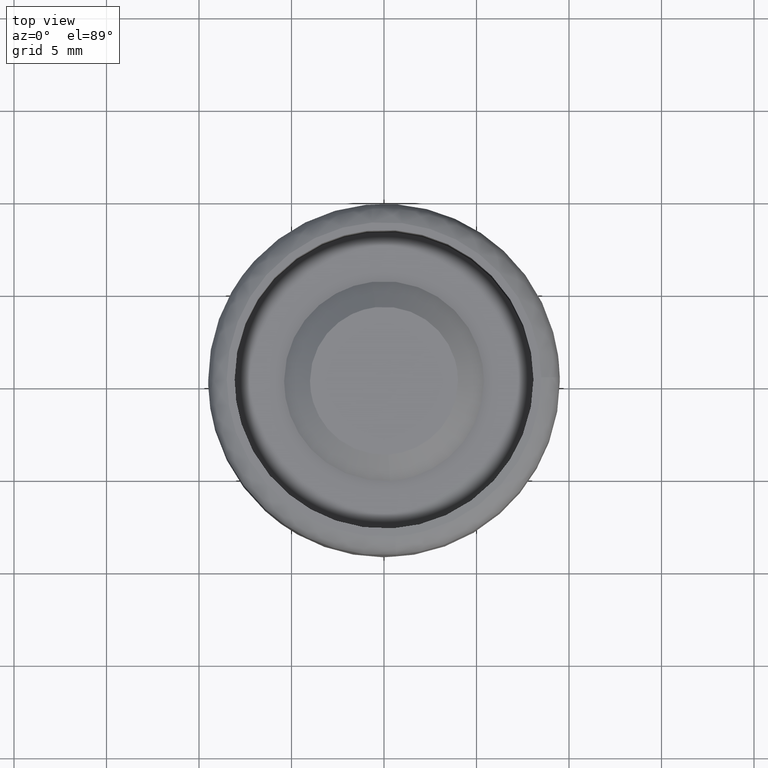
[diagram: clean part render]
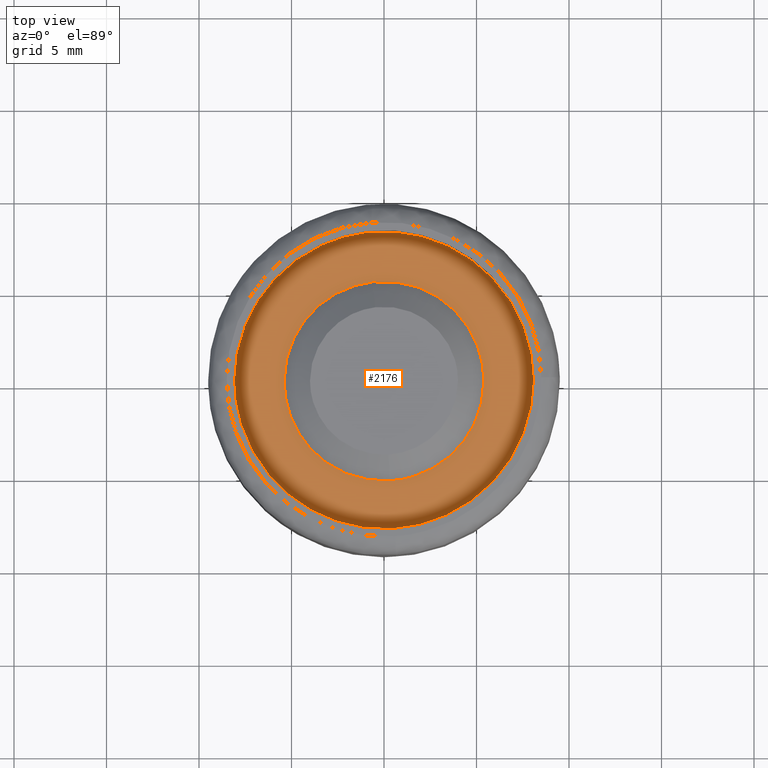
[diagram: same view with one face highlighted and labeled with its STEP entity id]
A machine part, top view. The second image highlights one B-rep face of the part: STEP entity #2176.
In plain terms, the highlighted face is a freeform B-spline surface patch.
Its self-contained STEP definition (entity closure, byte-faithful):
#899=CARTESIAN_POINT('',(0.329662113553684,-5.389927911483381,8.499999999993367));
#900=VERTEX_POINT('',#899);
#906=CARTESIAN_POINT('',(5.400000000000000,0.0,8.500000000000000));
#907=VERTEX_POINT('',#906);
#908=CARTESIAN_POINT('',(5.400000000000000,0.0,8.500000000000000));
#909=CARTESIAN_POINT('',(5.400000000000000,-5.079812761168246,8.500000000000000));
#910=CARTESIAN_POINT('',(0.329662113553684,-5.389927911483381,8.499999999993367));
#918=(BOUNDED_CURVE()B_SPLINE_CURVE(2,(#908,#909,#910),.UNSPECIFIED.,.F.,.U.)B_SPLINE_CURVE_WITH_KNOTS((3,3),(0.500000000000000,0.739332962237815),.UNSPECIFIED.)CURVE()GEOMETRIC_REPRESENTATION_ITEM()RATIONAL_B_SPLINE_CURVE((1.0,0.719603993288032,0.976072041664300))REPRESENTATION_ITEM(''));
#919=EDGE_CURVE('',#907,#900,#918,.T.);
#921=CARTESIAN_POINT('',(-0.637384867185027,5.362251442364437,8.499999999996298));
#922=VERTEX_POINT('',#921);
#923=CARTESIAN_POINT('',(-0.637384867185027,5.362251442364437,8.499999999996298));
#924=CARTESIAN_POINT('',(-0.319810246158635,5.400000000000001,8.500000000000000));
#925=CARTESIAN_POINT('',(0.0,5.400000000000000,8.500000000000000));
#926=CARTESIAN_POINT('',(5.400000000000000,5.400000000000000,8.500000000000002));
#927=CARTESIAN_POINT('',(5.400000000000000,0.0,8.500000000000000));
#935=(BOUNDED_CURVE()B_SPLINE_CURVE(2,(#923,#924,#925,#926,#927),.UNSPECIFIED.,.F.,.U.)B_SPLINE_CURVE_WITH_KNOTS((3,2,3),(0.229562473513254,0.250000000000000,0.500000000000000),.UNSPECIFIED.)CURVE()GEOMETRIC_REPRESENTATION_ITEM()RATIONAL_B_SPLINE_CURVE((0.956026754183201,0.976055948330847,1.0,0.707106781186548,1.0))REPRESENTATION_ITEM(''));
#936=EDGE_CURVE('',#922,#907,#935,.T.);
#980=CARTESIAN_POINT('',(-5.400000000000000,0.0,8.500000000000000));
#981=VERTEX_POINT('',#980);
#982=CARTESIAN_POINT('',(-5.400000000000000,0.0,8.500000000000000));
#983=CARTESIAN_POINT('',(-5.400000000000000,4.796142440069075,8.500000000000000));
#984=CARTESIAN_POINT('',(-0.637384867185027,5.362251442364437,8.499999999996298));
#992=(BOUNDED_CURVE()B_SPLINE_CURVE(2,(#982,#983,#984),.UNSPECIFIED.,.F.,.U.)B_SPLINE_CURVE_WITH_KNOTS((3,3),(0.0,0.229562473513254),.UNSPECIFIED.)CURVE()GEOMETRIC_REPRESENTATION_ITEM()RATIONAL_B_SPLINE_CURVE((1.0,0.731050832855700,0.956026754183201))REPRESENTATION_ITEM(''));
#993=EDGE_CURVE('',#981,#922,#992,.T.);
#995=CARTESIAN_POINT('',(0.329662113553684,-5.389927911483382,8.499999999993367));
#996=CARTESIAN_POINT('',(0.164984921877451,-5.400000000000000,8.500000000000000));
#997=CARTESIAN_POINT('',(0.0,-5.400000000000000,8.500000000000000));
#998=CARTESIAN_POINT('',(-5.400000000000000,-5.400000000000000,8.500000000000002));
#999=CARTESIAN_POINT('',(-5.400000000000000,0.0,8.500000000000000));
#1007=(BOUNDED_CURVE()B_SPLINE_CURVE(2,(#995,#996,#997,#998,#999),.UNSPECIFIED.,.F.,.U.)B_SPLINE_CURVE_WITH_KNOTS((3,2,3),(0.739332962237814,0.750000000000000,1.0),.UNSPECIFIED.)CURVE()GEOMETRIC_REPRESENTATION_ITEM()RATIONAL_B_SPLINE_CURVE((0.976072041664298,0.987502787898515,1.0,0.707106781186548,1.0))REPRESENTATION_ITEM(''));
#1008=EDGE_CURVE('',#900,#981,#1007,.T.);
#1051=CARTESIAN_POINT('',(-0.953118127799847,8.018552913985737,8.500000000000016));
#1052=VERTEX_POINT('',#1051);
#1053=CARTESIAN_POINT('',(8.075000000000001,0.0,8.500000000000000));
#1054=VERTEX_POINT('',#1053);
#1055=CARTESIAN_POINT('',(-0.953118127799847,8.018552913985737,8.500000000000016));
#1056=CARTESIAN_POINT('',(-0.478230563699668,8.075000000000001,8.499999999999998));
#1057=CARTESIAN_POINT('',(0.0,8.075000000000001,8.500000000000000));
#1058=CARTESIAN_POINT('',(8.075000000000001,8.075000000000001,8.500000000000002));
#1059=CARTESIAN_POINT('',(8.075000000000001,0.0,8.500000000000000));
#1067=(BOUNDED_CURVE()B_SPLINE_CURVE(2,(#1055,#1056,#1057,#1058,#1059),.UNSPECIFIED.,.F.,.U.)B_SPLINE_CURVE_WITH_KNOTS((3,2,3),(0.229562648810281,0.250000000000000,0.500000000000000),.UNSPECIFIED.)CURVE()GEOMETRIC_REPRESENTATION_ITEM()RATIONAL_B_SPLINE_CURVE((0.956027097772836,0.976056153704089,1.0,0.707106781186548,1.0))REPRESENTATION_ITEM(''));
#1068=EDGE_CURVE('',#1052,#1054,#1067,.T.);
#1070=CARTESIAN_POINT('',(0.492963741025758,-8.059938693937038,8.500000000000014));
#1071=VERTEX_POINT('',#1070);
#1072=CARTESIAN_POINT('',(8.075000000000001,0.0,8.500000000000000));
#1073=CARTESIAN_POINT('',(8.075000000000001,-7.596204526625908,8.500000000000000));
#1074=CARTESIAN_POINT('',(0.492963741025758,-8.059938693937038,8.500000000000014));
#1082=(BOUNDED_CURVE()B_SPLINE_CURVE(2,(#1072,#1073,#1074),.UNSPECIFIED.,.F.,.U.)B_SPLINE_CURVE_WITH_KNOTS((3,3),(0.500000000000000,0.739333031083918),.UNSPECIFIED.)CURVE()GEOMETRIC_REPRESENTATION_ITEM()RATIONAL_B_SPLINE_CURVE((1.0,0.719603912629804,0.976072189214650))REPRESENTATION_ITEM(''));
#1083=EDGE_CURVE('',#1054,#1071,#1082,.T.);
#1150=CARTESIAN_POINT('',(-8.075000000000001,0.0,8.500000000000000));
#1151=VERTEX_POINT('',#1150);
#1152=CARTESIAN_POINT('',(-8.075000000000001,0.0,8.500000000000000));
#1153=CARTESIAN_POINT('',(-8.075000000000001,7.172016788425156,8.500000000000002));
#1154=CARTESIAN_POINT('',(-0.953118127799847,8.018552913985737,8.500000000000016));
#1162=(BOUNDED_CURVE()B_SPLINE_CURVE(2,(#1152,#1153,#1154),.UNSPECIFIED.,.F.,.U.)B_SPLINE_CURVE_WITH_KNOTS((3,3),(0.0,0.229562648810281),.UNSPECIFIED.)CURVE()GEOMETRIC_REPRESENTATION_ITEM()RATIONAL_B_SPLINE_CURVE((1.0,0.731050627482458,0.956027097772836))REPRESENTATION_ITEM(''));
#1163=EDGE_CURVE('',#1151,#1052,#1162,.T.);
#1197=CARTESIAN_POINT('',(0.492963741025758,-8.059938693937038,8.500000000000014));
#1198=CARTESIAN_POINT('',(0.246711951268767,-8.075000000000003,8.499999999999998));
#1199=CARTESIAN_POINT('',(0.0,-8.075000000000001,8.500000000000000));
#1200=CARTESIAN_POINT('',(-8.075000000000001,-8.075000000000001,8.500000000000002));
#1201=CARTESIAN_POINT('',(-8.075000000000001,0.0,8.500000000000000));
#1209=(BOUNDED_CURVE()B_SPLINE_CURVE(2,(#1197,#1198,#1199,#1200,#1201),.UNSPECIFIED.,.F.,.U.)B_SPLINE_CURVE_WITH_KNOTS((3,2,3),(0.739333031083918,0.750000000000000,1.0),.UNSPECIFIED.)CURVE()GEOMETRIC_REPRESENTATION_ITEM()RATIONAL_B_SPLINE_CURVE((0.976072189214650,0.987502868556743,1.0,0.707106781186548,1.0))REPRESENTATION_ITEM(''));
#1210=EDGE_CURVE('',#1071,#1151,#1209,.T.);
#2159=CARTESIAN_POINT('',(8.881692317093521,-8.881496536794206,8.500000000000000));
#2160=CARTESIAN_POINT('',(-8.881692894662528,-8.881496536794206,8.500000000000000));
#2161=CARTESIAN_POINT('',(8.881692317093521,8.881545630159875,8.500000000000000));
#2162=CARTESIAN_POINT('',(-8.881692894662528,8.881545630159875,8.500000000000000));
#2163=B_SPLINE_SURFACE_WITH_KNOTS('',1,1,((#2159,#2161),(#2160,#2162)),.UNSPECIFIED.,.F.,.F.,.U.,(2,2),(2,2),(0.0,17.763385211756049),(0.0,17.763042166954079),.UNSPECIFIED.);
#2164=ORIENTED_EDGE('',*,*,#1210,.F.);
#2165=ORIENTED_EDGE('',*,*,#1083,.F.);
#2166=ORIENTED_EDGE('',*,*,#1068,.F.);
#2167=ORIENTED_EDGE('',*,*,#1163,.F.);
#2168=EDGE_LOOP('',(#2164,#2165,#2166,#2167));
#2169=FACE_OUTER_BOUND('',#2168,.T.);
#2170=ORIENTED_EDGE('',*,*,#919,.T.);
#2171=ORIENTED_EDGE('',*,*,#1008,.T.);
#2172=ORIENTED_EDGE('',*,*,#993,.T.);
#2173=ORIENTED_EDGE('',*,*,#936,.T.);
#2174=EDGE_LOOP('',(#2170,#2171,#2172,#2173));
#2175=FACE_BOUND('',#2174,.T.);
#2176=ADVANCED_FACE('',(#2169,#2175),#2163,.F.);